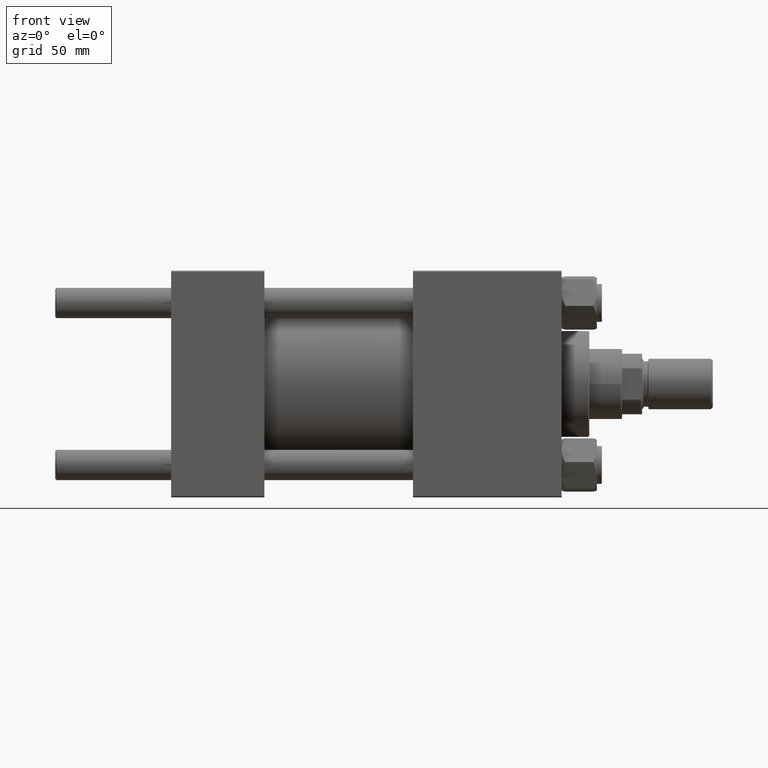
[diagram: clean part render]
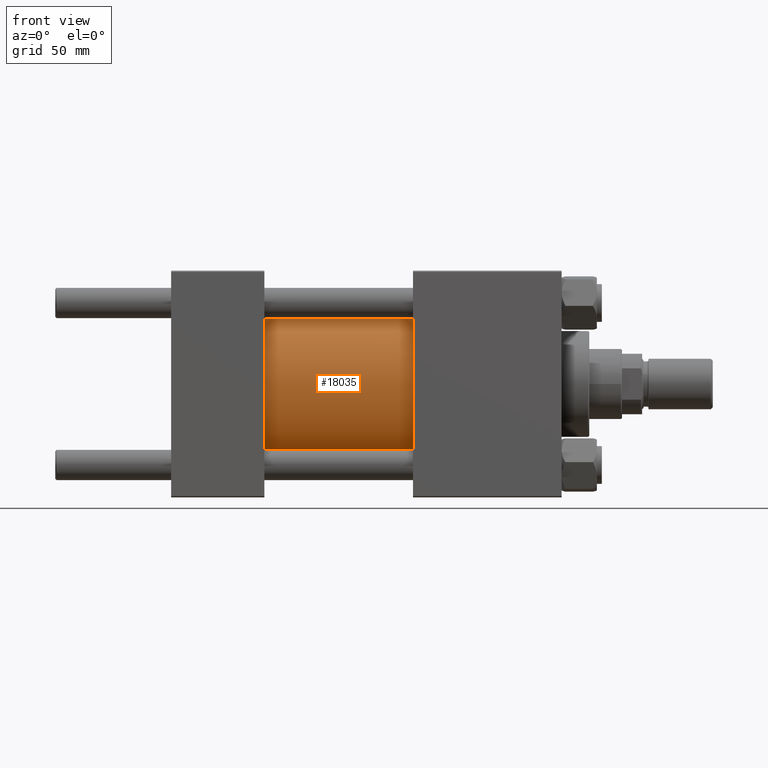
[diagram: same view with one face highlighted and labeled with its STEP entity id]
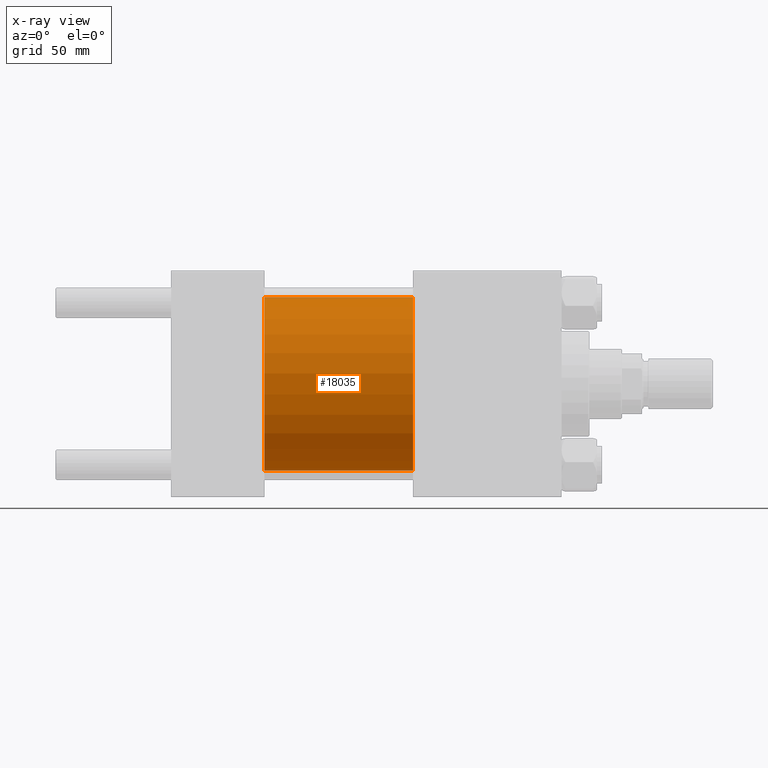
[diagram: x-ray of the same camera — body ghosted, the highlighted face saturated]
A machine part, front view. The second image highlights one B-rep face of the part: STEP entity #18035.
The next image is the same camera in x-ray: the body ghosted, the highlighted face saturated — about 2% of this face is hidden behind the body in this view.
In plain terms, the highlighted cylindrical surface (partial cylindrical patch) has radius 34.5 mm, axis along (-1, -0, -0).
Its self-contained STEP definition (entity closure, byte-faithful):
#4463 = DIRECTION ( 'NONE',  ( 0.000000000000000000, 0.000000000000000000, 1.000000000000000000 ) ) ;
#6467 = CARTESIAN_POINT ( 'NONE',  ( 37.00000000000000000, 0.000000000000000000, 34.49999999999999289 ) ) ;
#7330 = ORIENTED_EDGE ( 'NONE', *, *, #21847, .F. ) ;
#7811 = FACE_OUTER_BOUND ( 'NONE', #19301, .T. ) ;
#7953 = DIRECTION ( 'NONE',  ( 0.000000000000000000, 0.000000000000000000, -1.000000000000000000 ) ) ;
#8418 = EDGE_CURVE ( 'NONE', #15212, #9826, #8607, .T. ) ;
#8470 = AXIS2_PLACEMENT_3D ( 'NONE', #47062, #38932, #27469 ) ;
#8607 = LINE ( 'NONE', #24166, #38139 ) ;
#8809 = DIRECTION ( 'NONE',  ( 1.000000000000000000, -0.000000000000000000, 0.000000000000000000 ) ) ;
#9826 = VERTEX_POINT ( 'NONE', #15621 ) ;
#9840 = CARTESIAN_POINT ( 'NONE',  ( 96.00000000000000000, 0.000000000000000000, 34.49999999999999289 ) ) ;
#10253 = CIRCLE ( 'NONE', #14315, 34.49999999999999289 ) ;
#14315 = AXIS2_PLACEMENT_3D ( 'NONE', #23260, #23763, #7953 ) ;
#15212 = VERTEX_POINT ( 'NONE', #31494 ) ;
#15621 = CARTESIAN_POINT ( 'NONE',  ( 37.00000000000000000, 4.225031457058367344E-15, -34.49999999999999289 ) ) ;
#16215 = CYLINDRICAL_SURFACE ( 'NONE', #8470, 34.49999999999999289 ) ;
#16701 = CARTESIAN_POINT ( 'NONE',  ( 37.00000000000000000, 0.000000000000000000, 0.000000000000000000 ) ) ;
#17034 = ORIENTED_EDGE ( 'NONE', *, *, #26408, .T. ) ;
#18035 = ADVANCED_FACE ( 'NONE', ( #7811 ), #16215, .T. ) ;
#19301 = EDGE_LOOP ( 'NONE', ( #42963, #7330, #29028, #17034 ) ) ;
#21767 = EDGE_CURVE ( 'NONE', #38458, #40539, #42124, .T. ) ;
#21847 = EDGE_CURVE ( 'NONE', #38458, #15212, #10253, .T. ) ;
#22503 = DIRECTION ( 'NONE',  ( -1.000000000000000000, -0.000000000000000000, -0.000000000000000000 ) ) ;
#22759 = CARTESIAN_POINT ( 'NONE',  ( 96.00000000000000000, 0.000000000000000000, 34.49999999999999289 ) ) ;
#23260 = CARTESIAN_POINT ( 'NONE',  ( 96.00000000000000000, 0.000000000000000000, 0.000000000000000000 ) ) ;
#23763 = DIRECTION ( 'NONE',  ( 1.000000000000000000, 0.000000000000000000, 0.000000000000000000 ) ) ;
#24166 = CARTESIAN_POINT ( 'NONE',  ( 96.00000000000000000, 4.225031457058367344E-15, -34.49999999999999289 ) ) ;
#26408 = EDGE_CURVE ( 'NONE', #40539, #9826, #50154, .T. ) ;
#27469 = DIRECTION ( 'NONE',  ( 0.000000000000000000, 0.000000000000000000, 1.000000000000000000 ) ) ;
#28964 = VECTOR ( 'NONE', #22503, 1000.000000000000000 ) ;
#29028 = ORIENTED_EDGE ( 'NONE', *, *, #21767, .T. ) ;
#31494 = CARTESIAN_POINT ( 'NONE',  ( 96.00000000000000000, 4.225031457058367344E-15, -34.49999999999999289 ) ) ;
#32066 = DIRECTION ( 'NONE',  ( -1.000000000000000000, -0.000000000000000000, -0.000000000000000000 ) ) ;
#38139 = VECTOR ( 'NONE', #32066, 1000.000000000000000 ) ;
#38458 = VERTEX_POINT ( 'NONE', #9840 ) ;
#38789 = AXIS2_PLACEMENT_3D ( 'NONE', #16701, #8809, #4463 ) ;
#38932 = DIRECTION ( 'NONE',  ( -1.000000000000000000, -0.000000000000000000, -0.000000000000000000 ) ) ;
#40539 = VERTEX_POINT ( 'NONE', #6467 ) ;
#42124 = LINE ( 'NONE', #22759, #28964 ) ;
#42963 = ORIENTED_EDGE ( 'NONE', *, *, #8418, .F. ) ;
#47062 = CARTESIAN_POINT ( 'NONE',  ( 96.00000000000000000, 0.000000000000000000, 0.000000000000000000 ) ) ;
#50154 = CIRCLE ( 'NONE', #38789, 34.49999999999999289 ) ;